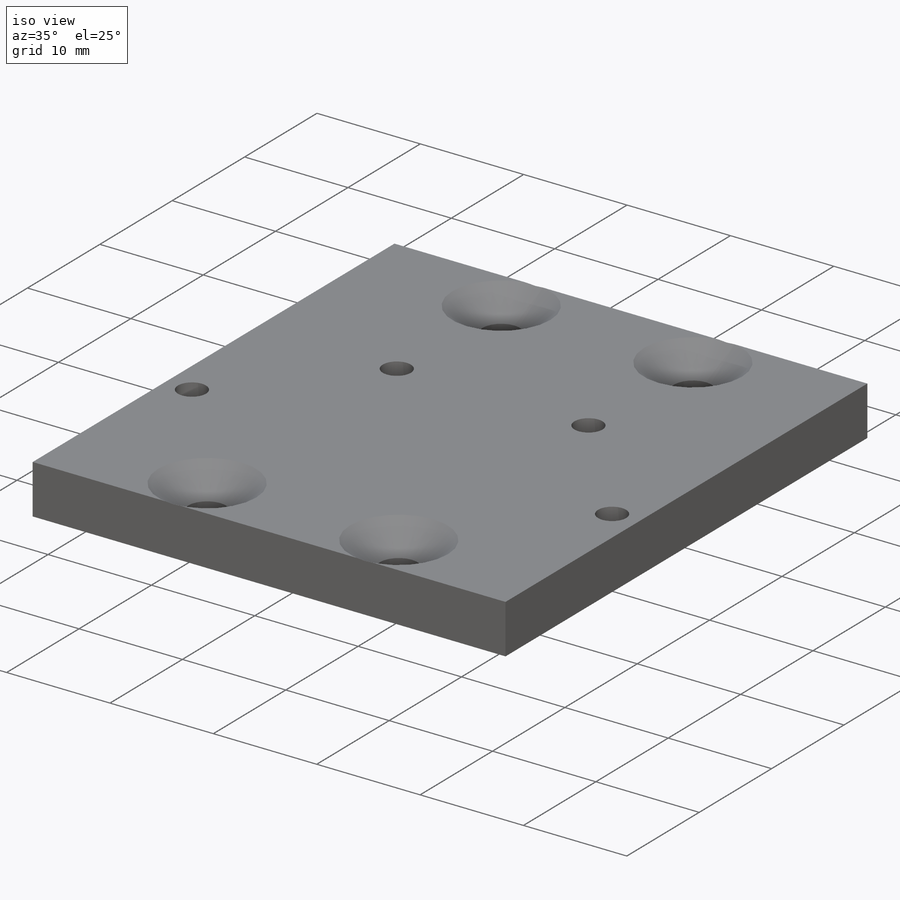
[diagram: iso view]
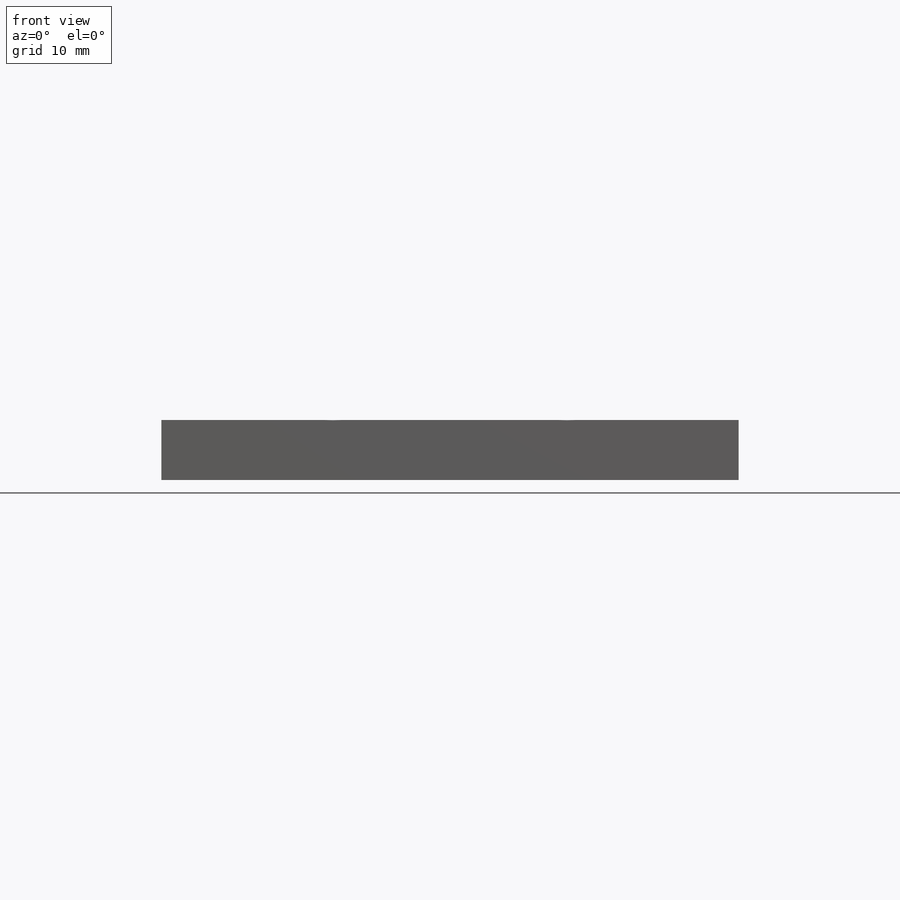
[diagram: front view]
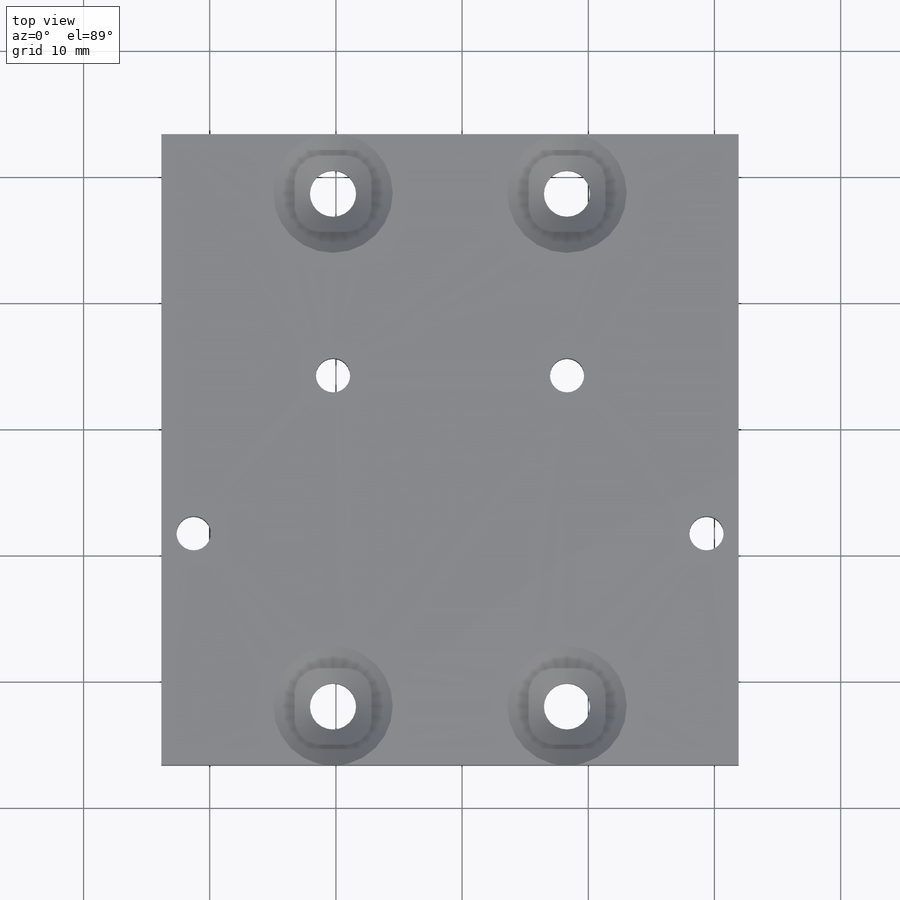
[diagram: top view]
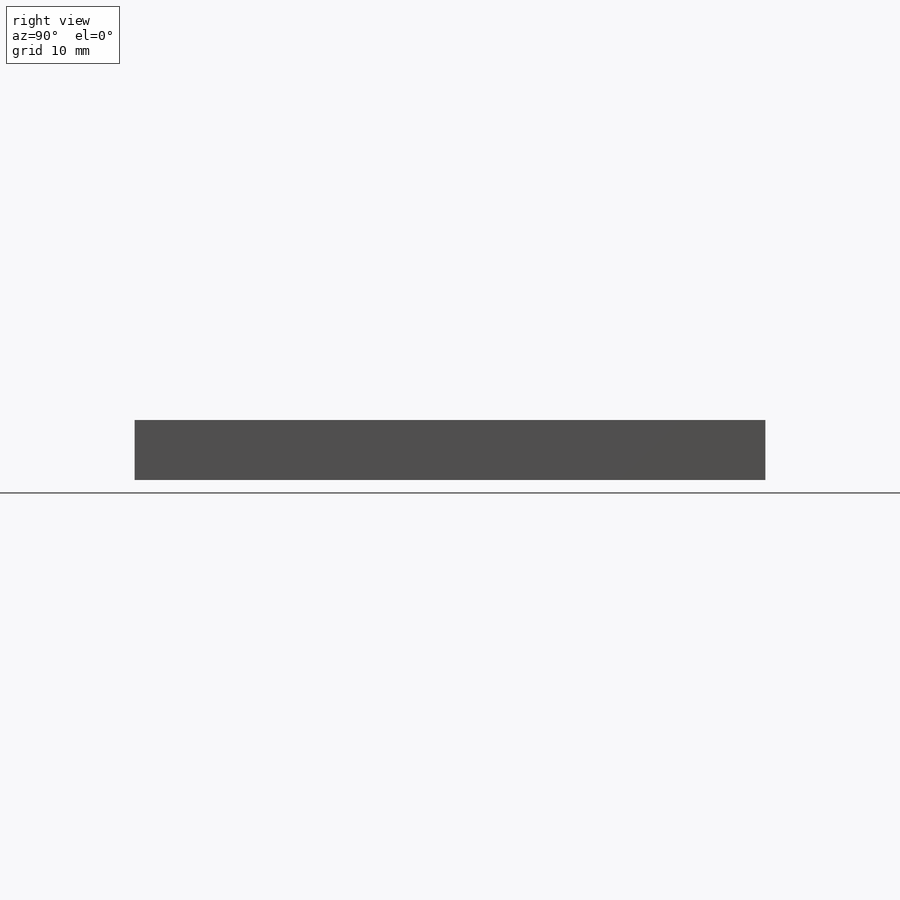
[diagram: right view]
SOLIDWORKS PART (.sldprt)
format: sldprt  version: not decoded by parser v0  size: 242,688 bytes
history: native  units: mm
features: sketch x5, plane x2, material x1, extrude x1, hole x1, cut_extrude x1 + 1 further entry (+12 scaffold rows collapsed)
feature tree (24):
  scaffold x12  (default folders/planes/origin — collapsed)
  material  "Material <not specified>"
  "Annotations"  RD3=5.271574mm
  sketch  "Sketch1"  dims[c1.D1=49.9872mm c1.D2=~45.745826mm c2.D1=~45.745826mm c2.D2=49.9872mm c2.D3=4.6736mm c2.D4=45.3136mm c2.D5=~13.601913mm c2.D6=~32.143913mm]
  extrude  "Boss-Extrude1"  Depth=4.7625mm
  sketch  "Sketch5"
  hole  "CSK for #6 Flat Head Machine Screw (100)8"  Diameter=3.6576mm Depth=4.7625mm
  sketch  "3DSketch4"
  sketch  "Sketch7"  dims[hole-wizard template sketch: 54 standard entries collapsed; hole parameters kept: c17.Thru Hole Dia.=3.6576mm c17.Thru Hole Depth=4.7625mm c17.Near C'Sink Dia.=~9.470111mm c17.D4=~3.666174mm c17.Near C'Sink Angle=100.0deg]
  plane  "Plane1"
  plane  "Plane2"
  sketch  "Sketch8"  dims[D1=~18.359628mm D2=~30.881828mm D3=~2.546666mm D4=~13.597605mm D5=~32.139605mm D6=~43.190544mm]
  cut_extrude  "Cut-Extrude1"  [1 undecoded]
decode coverage: 5 of 8 modeling features carry decoded parameters; 1 rows unclassified (native names shown)
note: ~ marks probable driven/reference dimensions
note: 1 parameter value undecoded
note: suppression state not decoded; provenance and decode notes live in map.json
